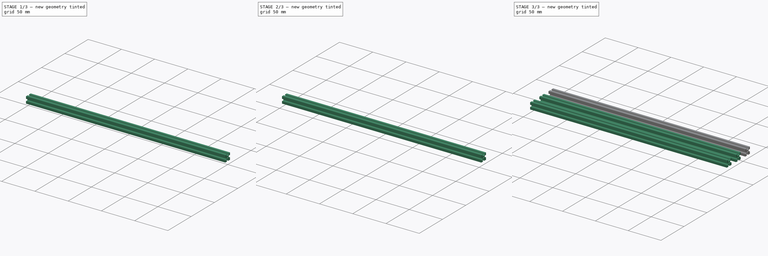
[diagram: build sequence overview — one tinted view per stage of 3, left to right]
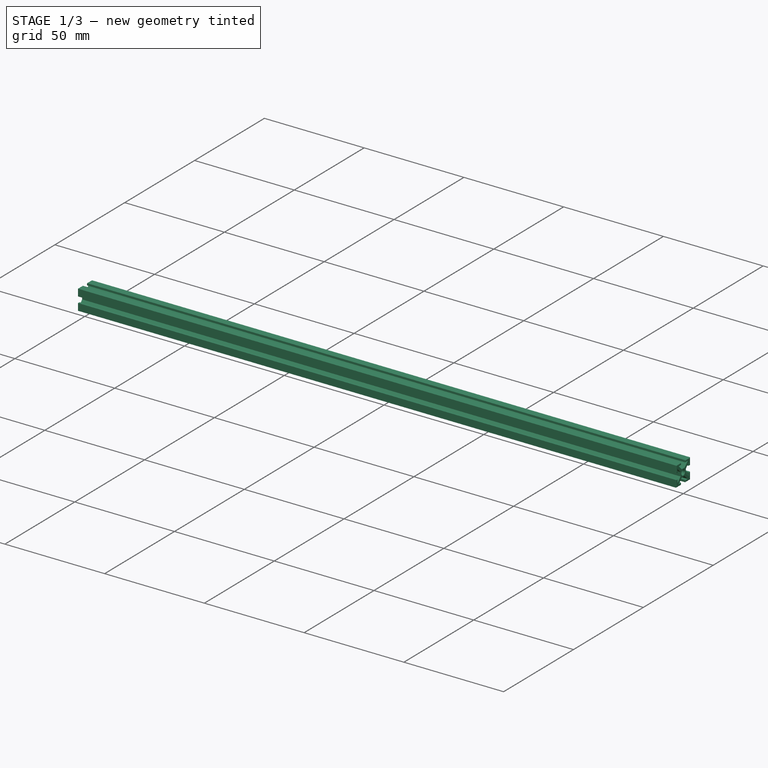
[diagram: stage 1 of 3 — iso view after this stage's code; geometry added in this stage tinted green]
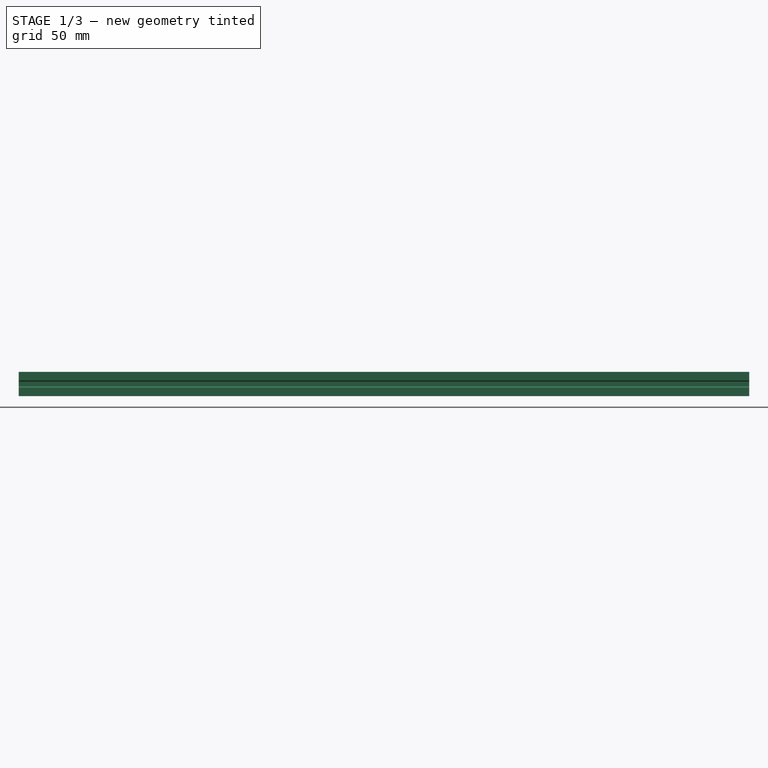
[diagram: stage 1 of 3 — front view after this stage's code; geometry added in this stage tinted green]
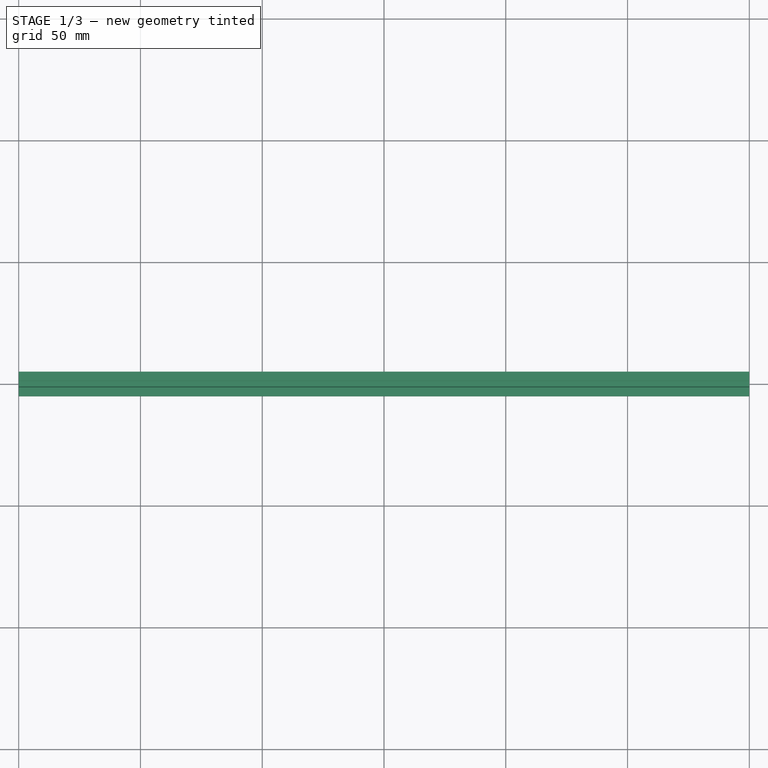
[diagram: stage 1 of 3 — top view after this stage's code; geometry added in this stage tinted green]
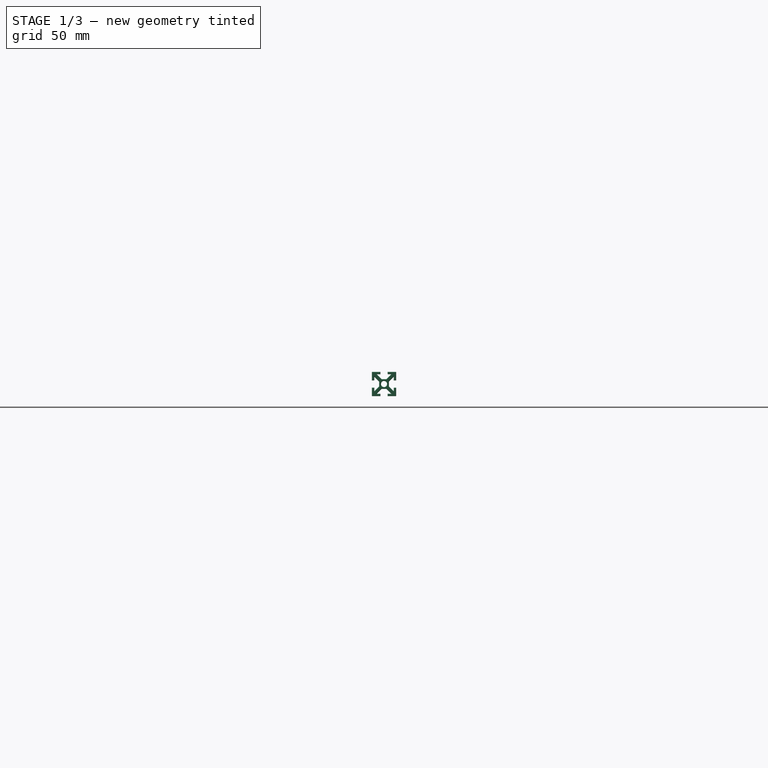
[diagram: stage 1 of 3 — right view after this stage's code; geometry added in this stage tinted green]
FCSTD DOCUMENT  (FreeCAD 0.16R6712 (Git))
Label: 300mm makerbeam
License: CreativeCommons Attribution-ShareAlike
LicenseURL: http://creativecommons.org/licenses/by-sa/4.0/
objects: Part::FeaturePython×3, Sketcher::SketchObject×1, PartDesign::Pad×1, PartDesign::Fillet×1, App::MeasureDistance×1, App::Annotation×1
note: 7 computed .brp shape members not serialized (recipe doc carries the construction recipe); baked Part::Feature solids carry a one-line shape summary decoded from their .brp

FEATURE [Sketcher::SketchObject] Sketch
  Placement = pos=(0,0,0) rot=(0,-1,0;1.5708rad)
  sketch-geometry (37):
    g0: Circle CenterX=0 CenterY=0 CenterZ=0 NormalX=0 NormalY=0 NormalZ=1 Radius=1.25
    g1: LineSegment StartX=-1 StartY=2 StartZ=0 EndX=1 EndY=2 EndZ=0
    g2: LineSegment StartX=1 StartY=2 StartZ=0 EndX=3 EndY=4 EndZ=0
    g3: LineSegment StartX=3 StartY=4 StartZ=0 EndX=1.5 EndY=4 EndZ=0
    g4: LineSegment StartX=1.5 StartY=4 StartZ=0 EndX=1.5 EndY=5 EndZ=0
    g5: LineSegment StartX=1.5 StartY=5 StartZ=0 EndX=5 EndY=5 EndZ=0
    g6: LineSegment StartX=5 StartY=5 StartZ=0 EndX=5 EndY=1.5 EndZ=0
    g7: LineSegment StartX=5 StartY=1.5 StartZ=0 EndX=4 EndY=1.5 EndZ=0
    g8: LineSegment StartX=4 StartY=1.5 StartZ=0 EndX=4 EndY=3 EndZ=0
    g9: LineSegment StartX=4 StartY=3 StartZ=0 EndX=2 EndY=1 EndZ=0
    g10: LineSegment StartX=2 StartY=1 StartZ=0 EndX=2 EndY=-1 EndZ=0
    g11: LineSegment StartX=2 StartY=-1 StartZ=0 EndX=4 EndY=-3 EndZ=0
    g12: LineSegment StartX=4 StartY=-3 StartZ=0 EndX=4 EndY=-1.5 EndZ=0
    g13: LineSegment StartX=4 StartY=-1.5 StartZ=0 EndX=5 EndY=-1.5 EndZ=0
    g14: LineSegment StartX=5 StartY=-1.5 StartZ=0 EndX=5 EndY=-5 EndZ=0
    g15: LineSegment StartX=5 StartY=-5 StartZ=0 EndX=1.5 EndY=-5 EndZ=0
    g16: LineSegment StartX=1.5 StartY=-5 StartZ=0 EndX=1.5 EndY=-4 EndZ=0
    g17: LineSegment StartX=1.5 StartY=-4 StartZ=0 EndX=3 EndY=-4 EndZ=0
    g18: LineSegment StartX=3 StartY=-4 StartZ=0 EndX=1 EndY=-2 EndZ=0
    g19: LineSegment StartX=1 StartY=-2 StartZ=0 EndX=-1 EndY=-2 EndZ=0
    g20: LineSegment StartX=-1 StartY=-2 StartZ=0 EndX=-3 EndY=-4 EndZ=0
    g21: LineSegment StartX=-3 StartY=-4 StartZ=0 EndX=-1.5 EndY=-4 EndZ=0
    g22: LineSegment StartX=-1.5 StartY=-4 StartZ=0 EndX=-1.5 EndY=-5 EndZ=0
    g23: LineSegment StartX=-1.5 StartY=-5 StartZ=0 EndX=-5 EndY=-5 EndZ=0
    g24: LineSegment StartX=-5 StartY=-5 StartZ=0 EndX=-5 EndY=-1.5 EndZ=0
    g25: LineSegment StartX=-5 StartY=-1.5 StartZ=0 EndX=-4 EndY=-1.5 EndZ=0
    g26: LineSegment StartX=-4 StartY=-1.5 StartZ=0 EndX=-4 EndY=-3 EndZ=0
    g27: LineSegment StartX=-4 StartY=-3 StartZ=0 EndX=-2 EndY=-1 EndZ=0
    g28: LineSegment StartX=-2 StartY=-1 StartZ=0 EndX=-2 EndY=1 EndZ=0
    g29: LineSegment StartX=-2 StartY=1 StartZ=0 EndX=-4 EndY=3 EndZ=0
    g30: LineSegment StartX=-4 StartY=3 StartZ=0 EndX=-4 EndY=1.5 EndZ=0
    g31: LineSegment StartX=-4 StartY=1.5 StartZ=0 EndX=-5 EndY=1.5 EndZ=0
    g32: LineSegment StartX=-5 StartY=1.5 StartZ=0 EndX=-5 EndY=5 EndZ=0
    g33: LineSegment StartX=-5 StartY=5 StartZ=0 EndX=-1.5 EndY=5 EndZ=0
    g34: LineSegment StartX=-1.5 StartY=5 StartZ=0 EndX=-1.5 EndY=4 EndZ=0
    g35: LineSegment StartX=-1.5 StartY=4 StartZ=0 EndX=-3 EndY=4 EndZ=0
    g36: LineSegment StartX=-3 StartY=4 StartZ=0 EndX=-1 EndY=2 EndZ=0
  constraints (109):
    c: Coincident(g0,g-1)
    c: Radius(g0) = 1.25
    c: Horizontal(g1)
    c: Coincident(g1,g2)
    c: Coincident(g2,g3)
    c: Horizontal(g3)
    c: Coincident(g3,g4)
    c: Vertical(g4)
    c: Coincident(g4,g5)
    c: Horizontal(g5)
    c: Coincident(g5,g6)
    c: Vertical(g6)
    c: Coincident(g6,g7)
    c: Horizontal(g7)
    c: Coincident(g7,g8)
    c: Vertical(g8)
    c: Coincident(g8,g9)
    c: Coincident(g9,g10)
    c: Coincident(g10,g11)
    c: Coincident(g11,g12)
    c: Vertical(g12)
    c: Coincident(g12,g13)
    c: Horizontal(g13)
    c: Coincident(g13,g14)
    c: Vertical(g14)
    c: Coincident(g14,g15)
    c: Horizontal(g15)
    c: Coincident(g15,g16)
    c: Vertical(g16)
    c: Coincident(g16,g17)
    c: Horizontal(g17)
    c: Coincident(g17,g18)
    c: Coincident(g18,g19)
    c: Coincident(g19,g20)
    c: Coincident(g20,g21)
    c: Horizontal(g21)
    c: Coincident(g21,g22)
    c: Vertical(g22)
    c: Coincident(g22,g23)
    c: Horizontal(g23)
    c: Coincident(g23,g24)
    c: Vertical(g24)
    c: Coincident(g24,g25)
    c: Horizontal(g25)
    c: Coincident(g25,g26)
    c: Vertical(g26)
    c: Coincident(g26,g27)
    c: Coincident(g27,g28)
    c: Coincident(g28,g29)
    c: Coincident(g29,g30)
    c: Coincident(g30,g31)
    c: Horizontal(g31)
    c: Coincident(g31,g32)
    c: Vertical(g32)
    c: Coincident(g32,g33)
    c: Horizontal(g33)
    c: Coincident(g33,g34)
    c: Vertical(g34)
    c: Coincident(g34,g35)
    c: Horizontal(g35)
    c: Coincident(g35,g36)
    c: Coincident(g36,g1)
    c: Equal(g28,g1)
    c: Equal(g1,g10)
    c: Equal(g10,g19)
    c: Symmetric(g23,g5,g-1)
    c: Symmetric(g14,g32,g-1)
    c: Symmetric(g23,g14,g-2)
    c: DistanceY(g32,g23) = -10
    c: DistanceX(g32,g5) = 10
    c: DistanceX(g19) = -2
    c: Equal(g24,g23)
    c: Equal(g23,g15)
    c: Equal(g15,g14)
    c: Equal(g14,g6)
    c: Equal(g6,g5)
    c: Equal(g5,g33)
    c: Equal(g33,g32)
    c: Symmetric(g10,g9,g-1)
    c: Symmetric(g27,g28,g-1)
    c: Symmetric(g19,g18,g-2)
    c: DistanceY(g6) = -3.5
    c: Vertical(g30)
    c: Equal(g13,g7)
    c: Equal(g7,g4)
    c: Equal(g4,g34)
    c: Equal(g34,g31)
    c: Equal(g31,g25)
    c: Equal(g25,g22)
    c: Equal(g22,g16)
    c: DistanceX(g13) = 1
    c: Symmetric(g28,g9,g-2)
    c: Symmetric(g1,g19,g-1)
    c: DistanceY(g1,g19) = -4
    c: Equal(g20,g27)
    c: Equal(g27,g29)
    c: Equal(g29,g36)
    c: Equal(g36,g2)
    c: Equal(g2,g9)
    c: Equal(g9,g11)
    c: Equal(g11,g18)
    c: Equal(g30,g35)
    c: Equal(g35,g3)
    c: Equal(g3,g8)
    c: Equal(g8,g17)
    c: Equal(g17,g12)
    c: Equal(g12,g21)
    c: Equal(g21,g26)
    c: DistanceY(g26) = -1.5
FEATURE [PartDesign::Pad] Pad
  Length = 300
  Length2 = 100
  Placement = pos=(0,0,0) rot=(0,-1,0;1.5708rad)
  Sketch = -> Sketch
  Type = 0
FEATURE [PartDesign::Fillet] Fillet
  Base = -> Pad [Edge3,Edge6,Edge9,Edge12,Edge15,Edge18,Edge21,Edge24,Edge27,Edge30,Edge33,Edge36,Edge39,Edge42,Edge45,Edge48,Edge51,Edge54,Edge57,Edge60,Edge63,Edge66,Edge69,Edge72,Edge75,Edge78,Edge81,Edge84,Edge87,Edge90,Edge93,Edge96,Edge99,Edge102,Edge105,Edge107,Edge110,Edge4,Edge7,Edge10,+34 more]
  Placement = pos=(0,0,0) rot=(0,-1,0;1.5708rad)
  Radius = 0.2
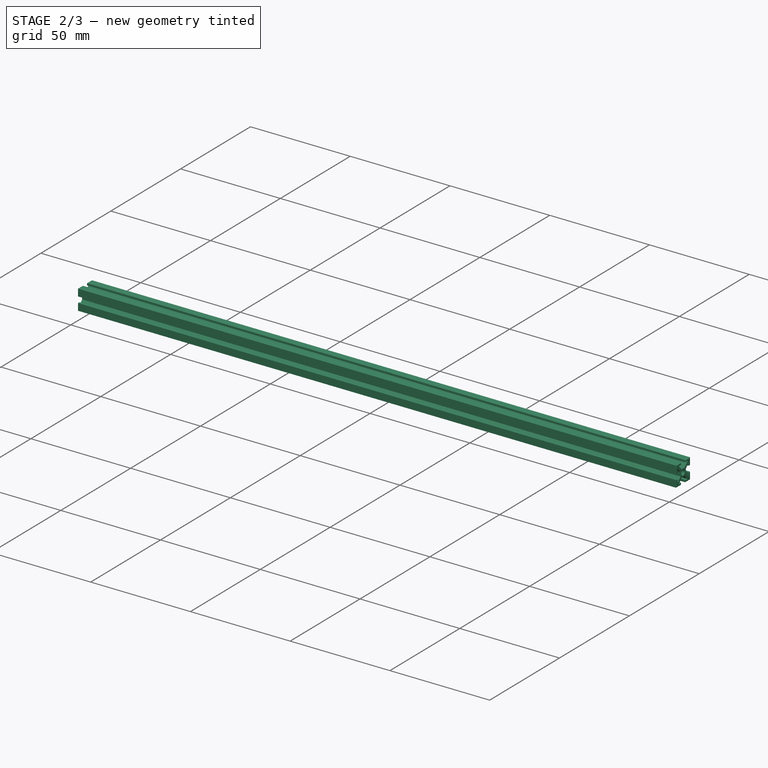
[diagram: stage 2 of 3 — iso view after this stage's code; geometry added in this stage tinted green]
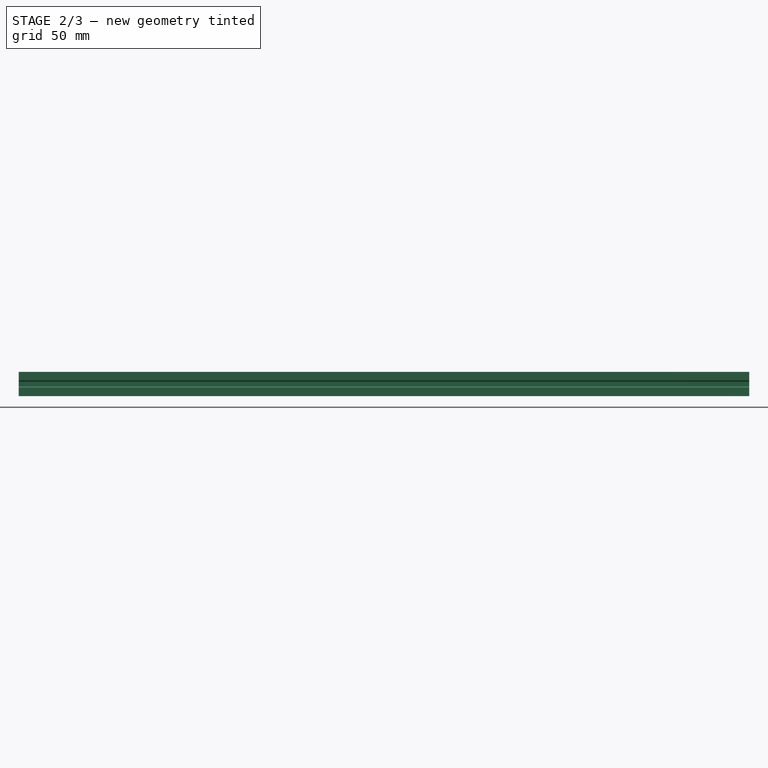
[diagram: stage 2 of 3 — front view after this stage's code; geometry added in this stage tinted green]
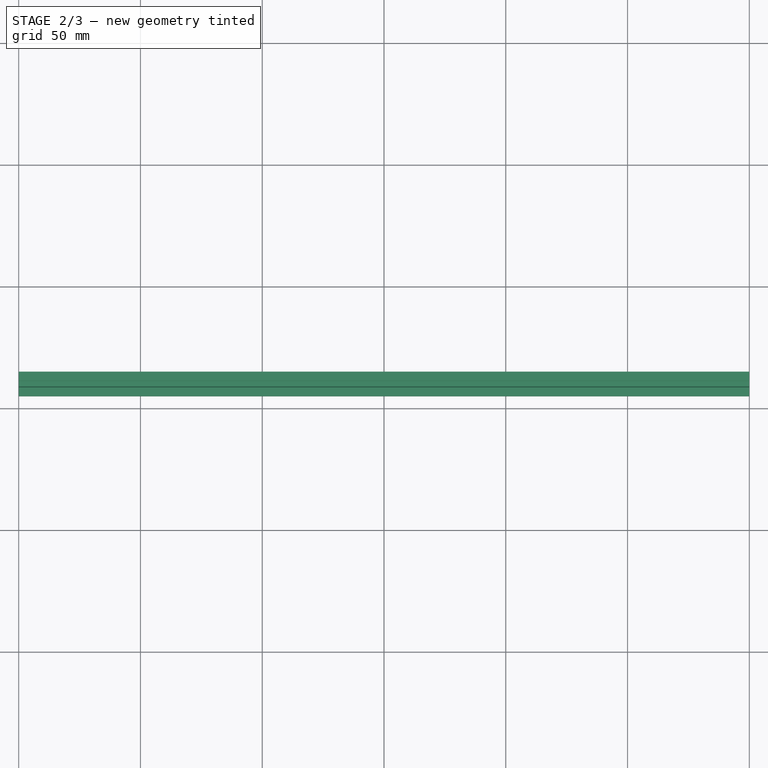
[diagram: stage 2 of 3 — top view after this stage's code; geometry added in this stage tinted green]
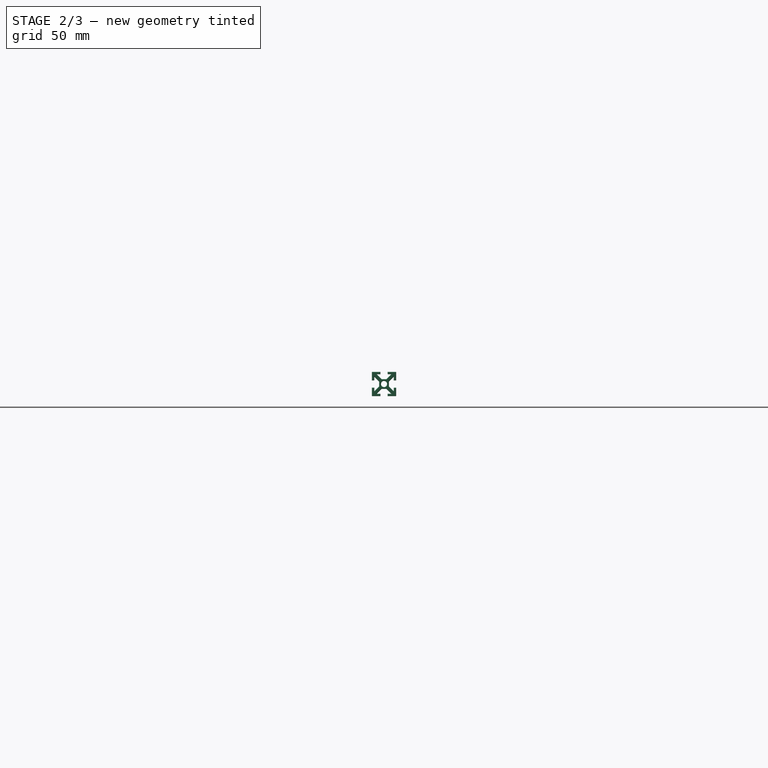
[diagram: stage 2 of 3 — right view after this stage's code; geometry added in this stage tinted green]
FEATURE [Part::FeaturePython] Clone002  label="Clone of Fillet002"  # Draft clone (typed FeaturePython)
  Objects = -> [Fillet]
  Placement = pos=(0,60,0) rot=(0,-1,0;1.5708rad)
  Scale = (1,1,1)
FEATURE [App::MeasureDistance] Distance  label="Distance: 300 mm"
  Distance = 300
  P1 = (-5.72205e-07,64.8,4.8)
  P2 = (-300,64.8,4.79996)
FEATURE [App::Annotation] Text
  LabelText = 4x 300mm
  Position = (-283.34,-38.11,0)
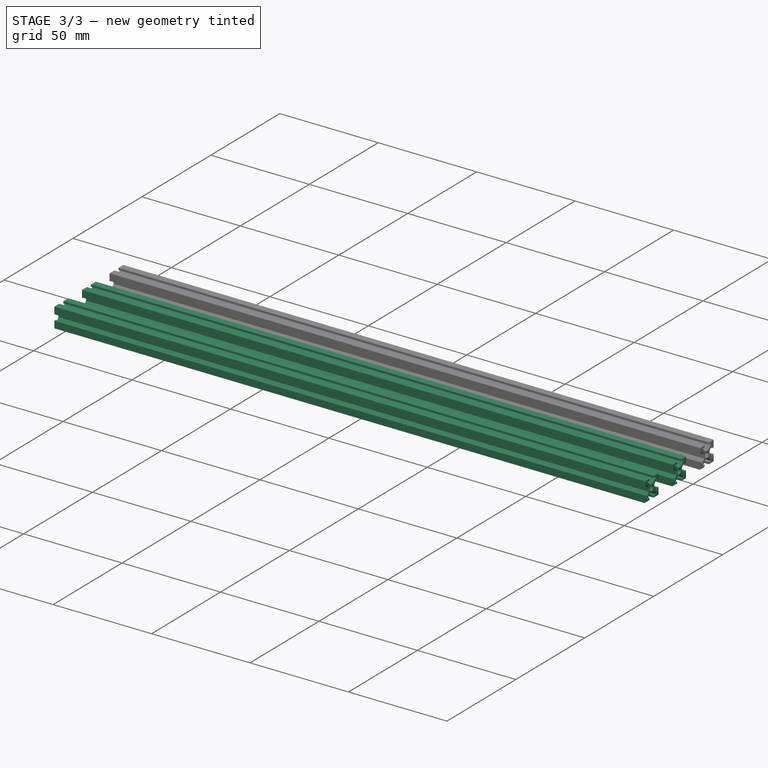
[diagram: stage 3 of 3 — iso view after this stage's code; geometry added in this stage tinted green]
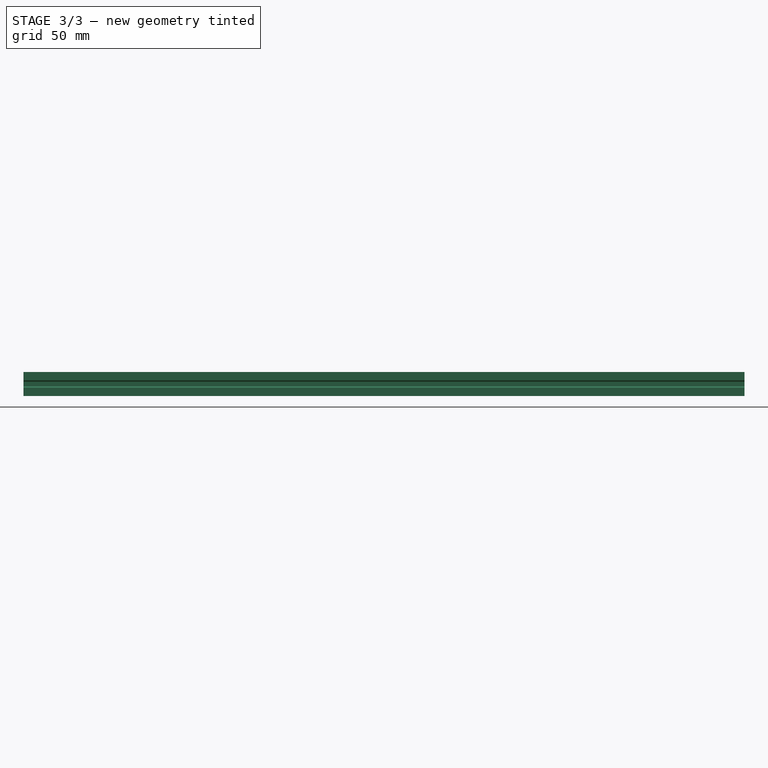
[diagram: stage 3 of 3 — front view after this stage's code; geometry added in this stage tinted green]
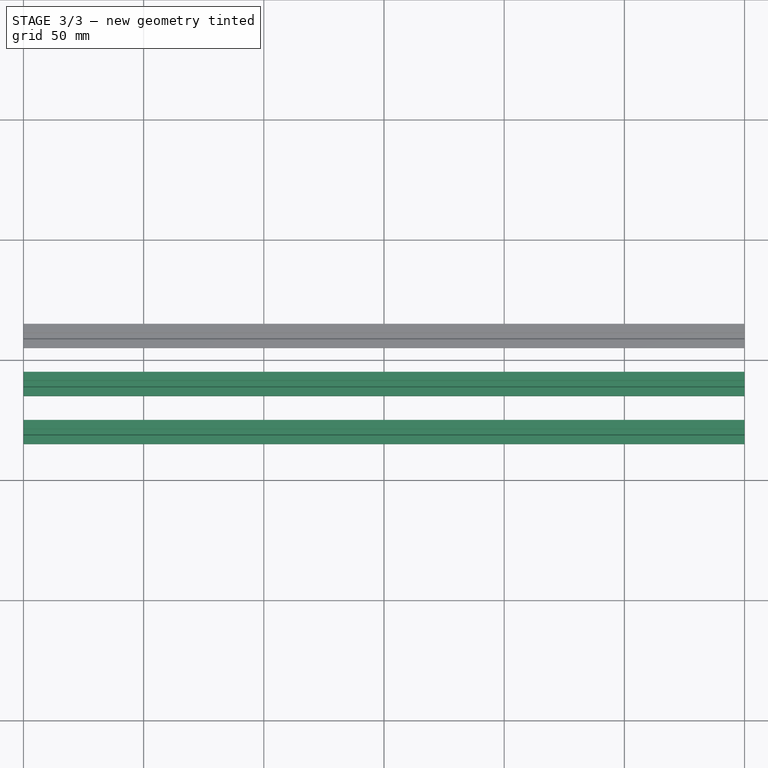
[diagram: stage 3 of 3 — top view after this stage's code; geometry added in this stage tinted green]
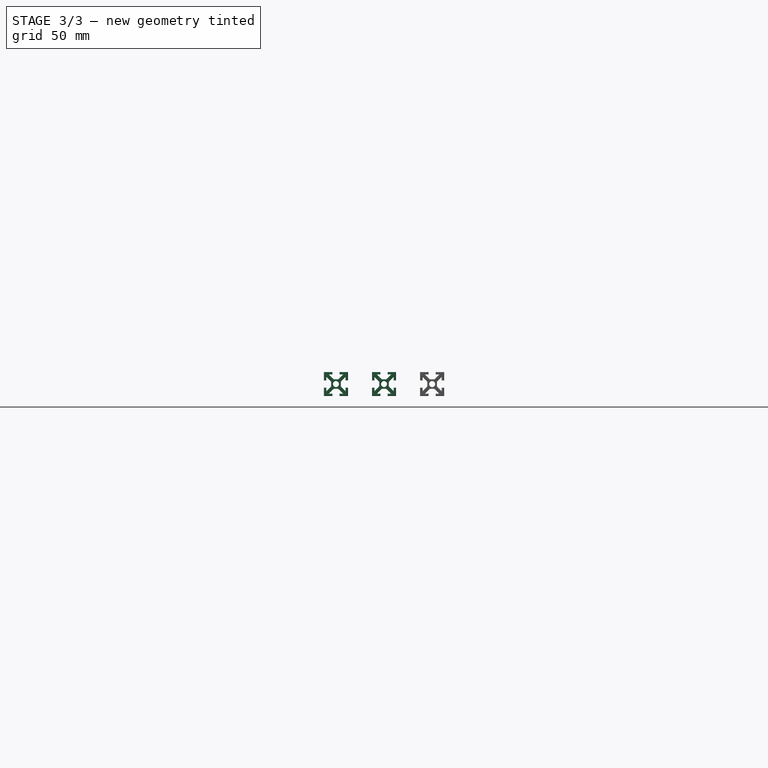
[diagram: stage 3 of 3 — right view after this stage's code; geometry added in this stage tinted green]
FEATURE [Part::FeaturePython] Clone  label="Clone of Fillet"  # Draft clone (typed FeaturePython)
  Objects = -> [Fillet]
  Placement = pos=(0,20,0) rot=(0,-1,0;1.5708rad)
  Scale = (1,1,1)
FEATURE [Part::FeaturePython] Clone001  label="Clone of Fillet001"  # Draft clone (typed FeaturePython)
  Objects = -> [Fillet]
  Placement = pos=(0,40,0) rot=(0,-1,0;1.5708rad)
  Scale = (1,1,1)
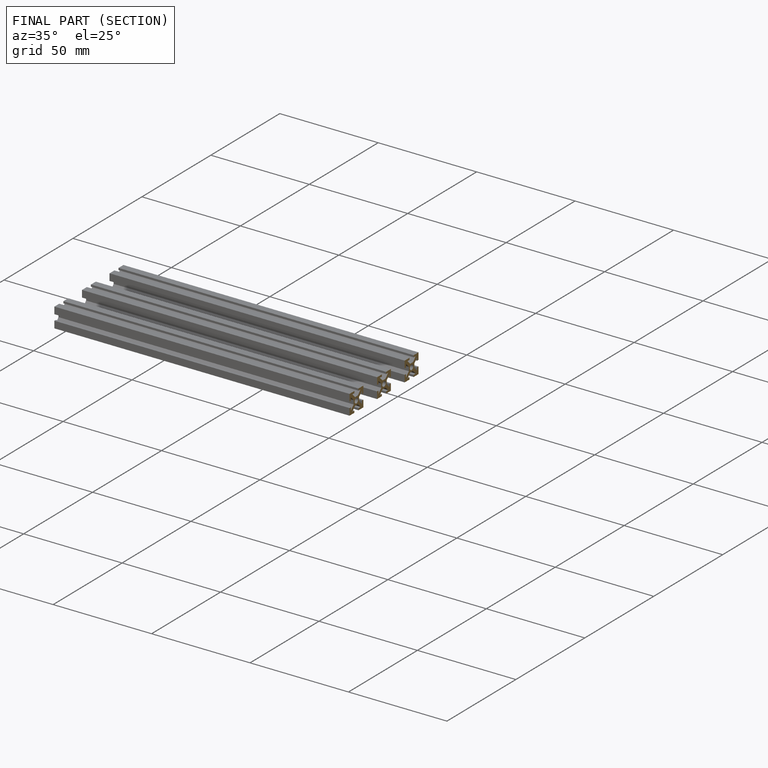
[diagram: finished part — half-section view (interior)]
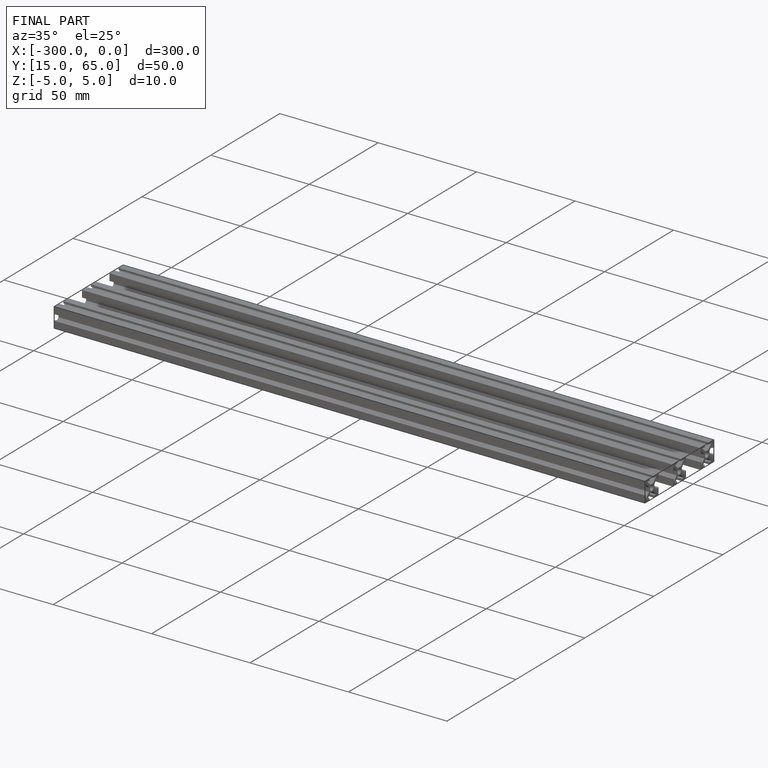
[diagram: finished part — iso view with bounding-box wireframe]
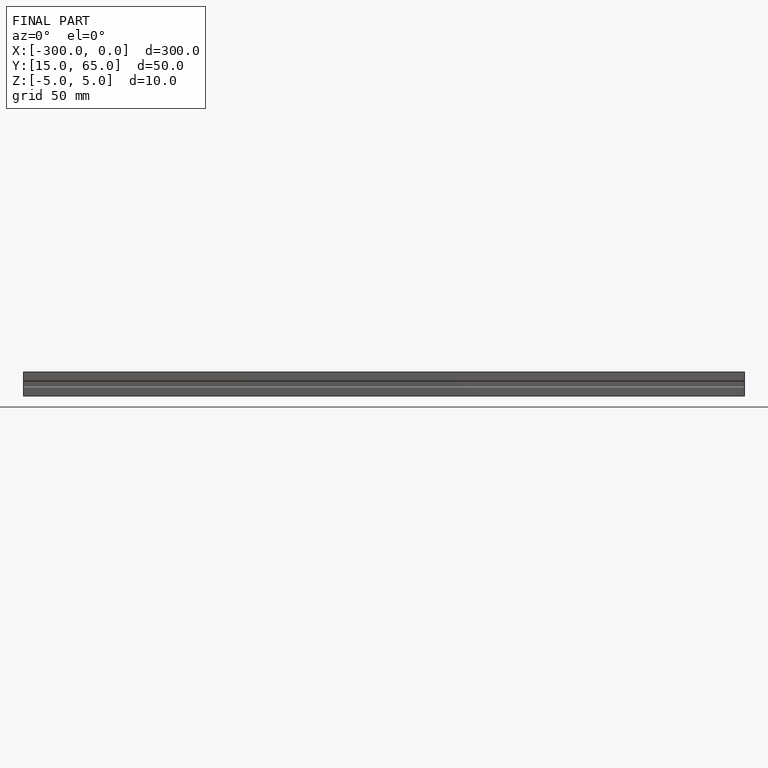
[diagram: finished part — front view with bounding-box wireframe]
